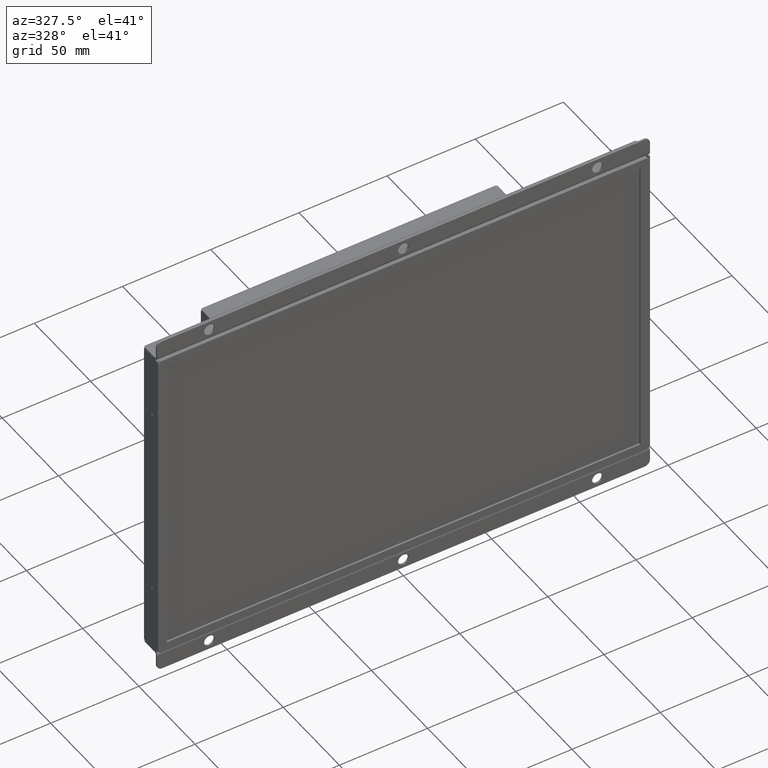
[diagram: clean part render]
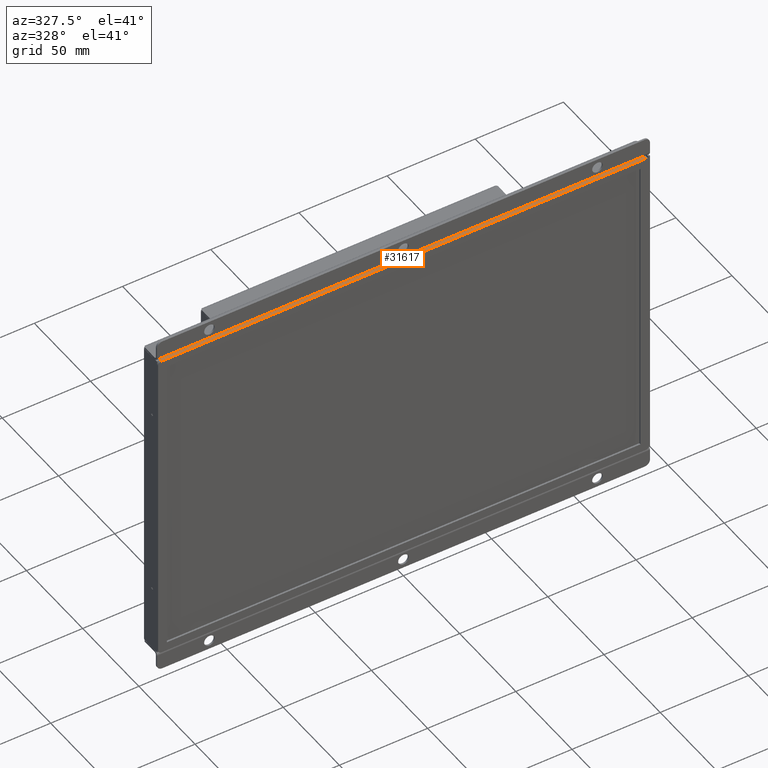
[diagram: same view with one face highlighted and labeled with its STEP entity id]
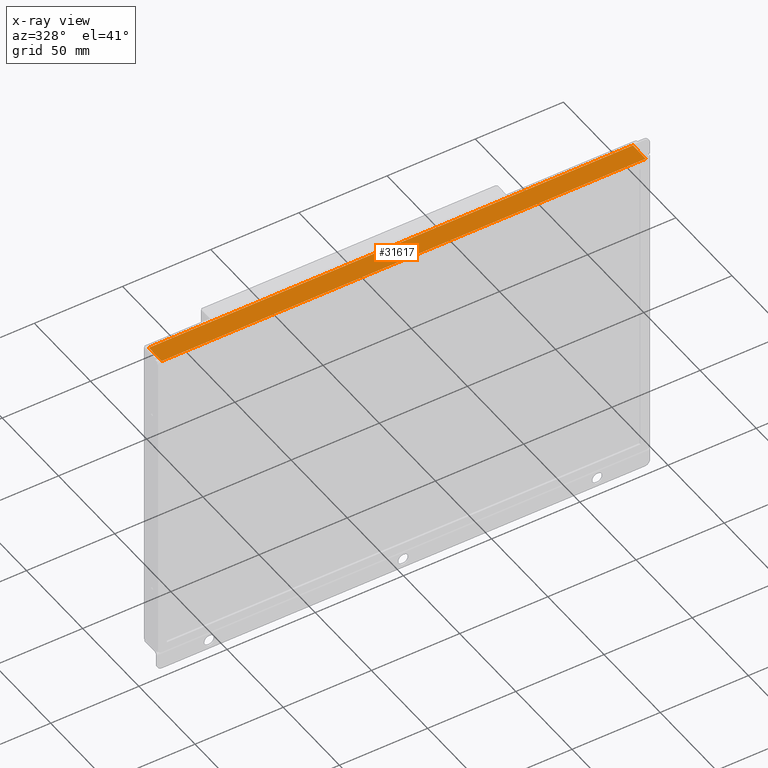
[diagram: x-ray of the same camera — body ghosted, the highlighted face saturated]
A machine part, auxiliary view. The second image highlights one B-rep face of the part: STEP entity #31617.
The next image is the same camera in x-ray: the body ghosted, the highlighted face saturated — about 0% of this face is hidden behind the body in this view.
In plain terms, the highlighted planar face has unit normal (-0, -0, 1).
Its self-contained STEP definition (entity closure, byte-faithful):
#1657=PLANE('',#34369);
#3587=FACE_OUTER_BOUND('',#5467,.T.);
#5467=EDGE_LOOP('',(#26603,#26604,#26605,#26606));
#8340=LINE('',#51766,#11259);
#8381=LINE('',#51902,#11300);
#8386=LINE('',#51917,#11305);
#8396=LINE('',#51936,#11315);
#11259=VECTOR('',#40934,10.);
#11300=VECTOR('',#41059,10.);
#11305=VECTOR('',#41072,10.);
#11315=VECTOR('',#41092,10.);
#15177=VERTEX_POINT('',#51762);
#15179=VERTEX_POINT('',#51765);
#15232=VERTEX_POINT('',#51900);
#15238=VERTEX_POINT('',#51915);
#19085=EDGE_CURVE('',#15177,#15179,#8340,.T.);
#19150=EDGE_CURVE('',#15232,#15177,#8381,.T.);
#19158=EDGE_CURVE('',#15238,#15232,#8386,.T.);
#19168=EDGE_CURVE('',#15179,#15238,#8396,.T.);
#26603=ORIENTED_EDGE('',*,*,#19150,.F.);
#26604=ORIENTED_EDGE('',*,*,#19158,.F.);
#26605=ORIENTED_EDGE('',*,*,#19168,.F.);
#26606=ORIENTED_EDGE('',*,*,#19085,.F.);
#31617=ADVANCED_FACE('',(#3587),#1657,.T.);
#34369=AXIS2_PLACEMENT_3D('',#51945,#41105,#41106);
#40934=DIRECTION('',(1.,2.55132041565566E-16,0.));
#41059=DIRECTION('',(0.,0.,-1.));
#41072=DIRECTION('',(-1.,0.,0.));
#41092=DIRECTION('',(0.,0.,1.));
#41105=DIRECTION('center_axis',(-2.55132041565566E-16,1.,0.));
#41106=DIRECTION('ref_axis',(-1.,-2.55132041565566E-16,0.));
#51762=CARTESIAN_POINT('',(-137.25,92.25,0.));
#51765=CARTESIAN_POINT('',(137.25,92.25,0.));
#51766=CARTESIAN_POINT('',(-139.25,92.25,0.));
#51900=CARTESIAN_POINT('',(-137.25,92.25,11.5));
#51902=CARTESIAN_POINT('',(-137.25,92.25,0.));
#51915=CARTESIAN_POINT('',(137.25,92.25,11.5));
#51917=CARTESIAN_POINT('',(139.25,92.25,11.5));
#51936=CARTESIAN_POINT('',(137.25,92.25,0.));
#51945=CARTESIAN_POINT('Origin',(139.25,92.25,0.));